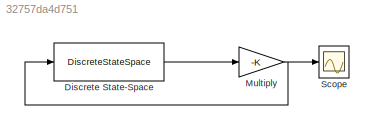
MODEL slx_32757da4d751
KIND model
CONFIG AbsTol = auto
CONFIG EnableMultiTasking = off
CONFIG FixedStep = auto
CONFIG MaxStep = auto
CONFIG MinStep = auto
CONFIG RelTol = 1e-3
CONFIG SampleTimeConstraint = Unconstrained
CONFIG SolverName = VariableStepAuto
CONFIG StartTime = 0.0
CONFIG StopTime = 10.0
BLOCK [DiscreteStateSpace] Discrete State-Space
  A = Gd_ss.A
  B = Gd_ss.B
  C = [1 0;0 1]
  D = [0 ; 0]
  InitialCondition = X0
  SampleTime = T
BLOCK [Gain] Multiply
  Gain = -K
  Multiplication = Matrix(K*u)
BLOCK [Scope] Scope
  Floating = off
  NumInputPorts = 1
  ScopeSpecificationString = Simulink.scopes.TimeScopeBlockCfg('CurrentConfiguration', extmgr.ConfigurationSet(extmgr.Configuration('Core','General UI',true),extmgr.Configuration('Core','Source UI',true),extmgr.Configuration('Sources','WiredSimulink',true),extmgr.Configuration('Visuals','Time Domain',true,'SerializedDisplays',{struct('MinYLimReal','-0.30249','MaxYLimReal','0.22481','YLabelReal','','MinYLimMag','0.00000','MaxY...<+1473ch>
LINE Discrete State-Space:1 -> Multiply:1
NET Multiply:1 -> Discrete State-Space:1, Scope:1
note: NET lines group one-source signal fan-out (src -> all destinations, sorted); 1:1 wires keep LINE
